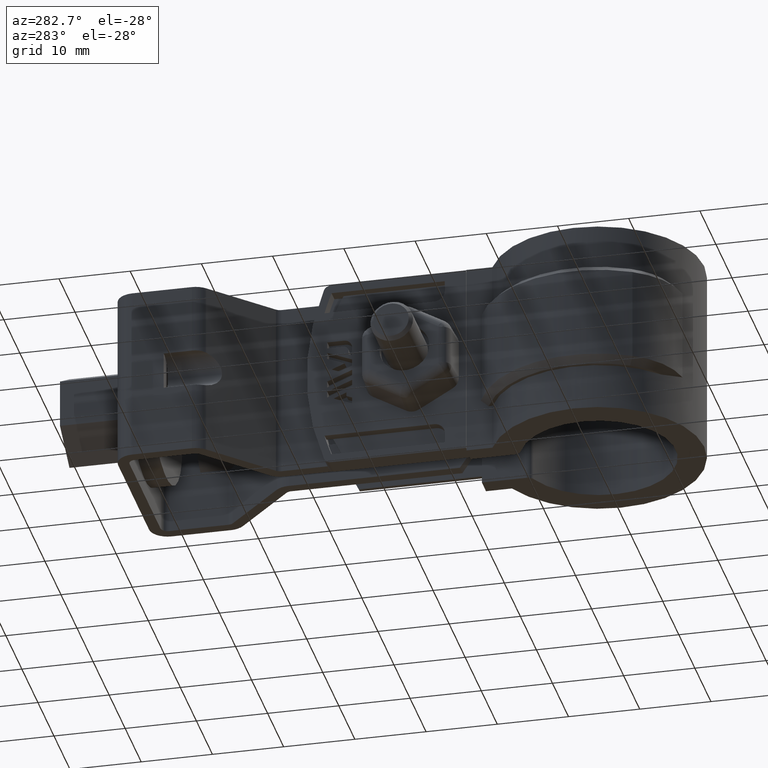
[diagram: clean part render]
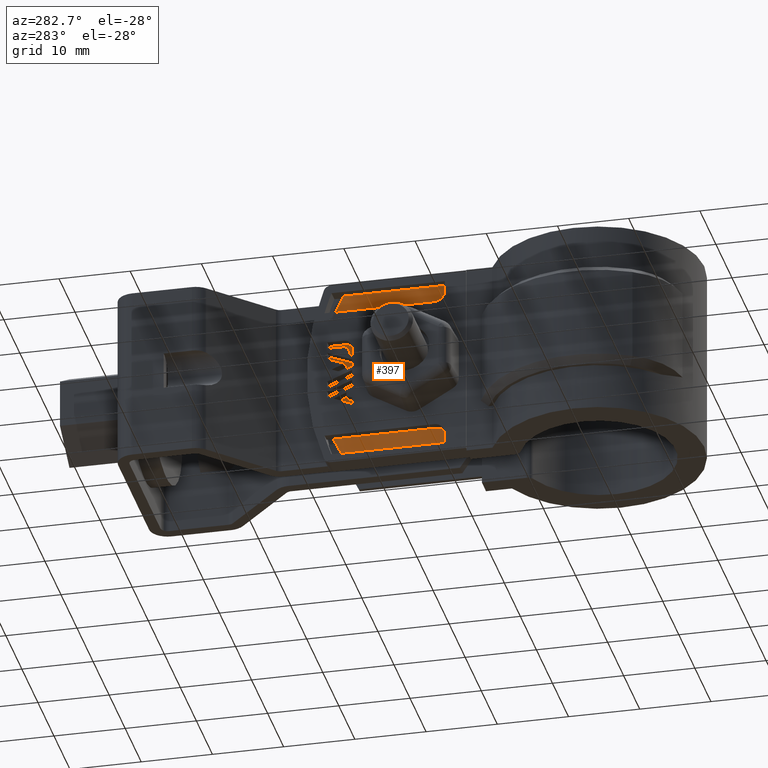
[diagram: same view with one face highlighted and labeled with its STEP entity id]
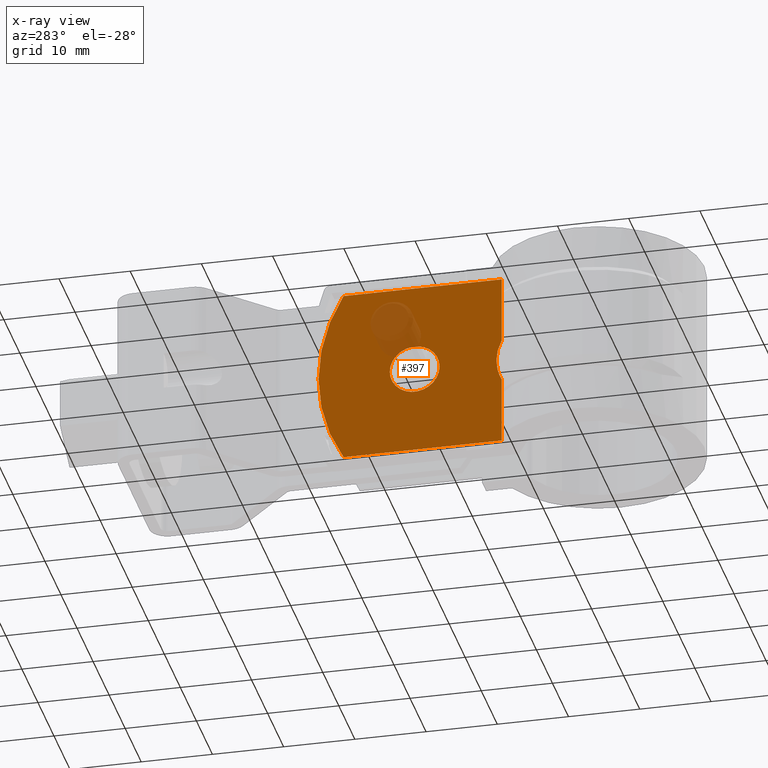
[diagram: x-ray of the same camera — body ghosted, the highlighted face saturated]
A machine part, auxiliary view. The second image highlights one B-rep face of the part: STEP entity #397.
The next image is the same camera in x-ray: the body ghosted, the highlighted face saturated — about 8% of this face is hidden behind the body in this view.
In plain terms, the highlighted planar face has unit normal (1, -0, 0).
Its self-contained STEP definition (entity closure, byte-faithful):
#397 = ADVANCED_FACE( '', ( #760, #761 ), #762, .F. );
#760 = FACE_BOUND( '', #1601, .T. );
#761 = FACE_OUTER_BOUND( '', #1602, .T. );
#762 = PLANE( '', #1603 );
#1601 = EDGE_LOOP( '', ( #3378 ) );
#1602 = EDGE_LOOP( '', ( #3379, #3380, #3381, #3382, #3383, #3384 ) );
#1603 = AXIS2_PLACEMENT_3D( '', #3385, #3386, #3387 );
#3378 = ORIENTED_EDGE( '', *, *, #6409, .F. );
#3379 = ORIENTED_EDGE( '', *, *, #6407, .F. );
#3380 = ORIENTED_EDGE( '', *, *, #6411, .F. );
#3381 = ORIENTED_EDGE( '', *, *, #6299, .F. );
#3382 = ORIENTED_EDGE( '', *, *, #6348, .F. );
#3383 = ORIENTED_EDGE( '', *, *, #6340, .T. );
#3384 = ORIENTED_EDGE( '', *, *, #6410, .F. );
#3385 = CARTESIAN_POINT( '', ( -5.10000000000000, 38.1782154210768, 0.000000000000000 ) );
#3386 = DIRECTION( '', ( 1.00000000000000, -6.12303176911189E-017, 0.000000000000000 ) );
#3387 = DIRECTION( '', ( -6.12303176911189E-017, -1.00000000000000, 0.000000000000000 ) );
#6299 = EDGE_CURVE( '', #7223, #7226, #7227, .T. );
#6340 = EDGE_CURVE( '', #7299, #7297, #7300, .T. );
#6348 = EDGE_CURVE( '', #7299, #7223, #7313, .T. );
#6407 = EDGE_CURVE( '', #7403, #7401, #7405, .T. );
#6409 = EDGE_CURVE( '', #7408, #7408, #7409, .F. );
#6410 = EDGE_CURVE( '', #7401, #7297, #7410, .T. );
#6411 = EDGE_CURVE( '', #7226, #7403, #7411, .T. );
#7223 = VERTEX_POINT( '', #8834 );
#7226 = VERTEX_POINT( '', #8838 );
#7227 = LINE( '', #8839, #8840 );
#7297 = VERTEX_POINT( '', #9165 );
#7299 = VERTEX_POINT( '', #9167 );
#7300 = LINE( '', #9168, #9169 );
#7313 = CIRCLE( '', #9185, 24.0000000000000 );
#7401 = VERTEX_POINT( '', #9590 );
#7403 = VERTEX_POINT( '', #9605 );
#7405 = B_SPLINE_CURVE_WITH_KNOTS( '', 3, ( #9620, #9621, #9622, #9623, #9624, #9625, #9626, #9627, #9628, #9629, #9630, #9631, #9632 ), .UNSPECIFIED., .F., .F., ( 4, 2, 2, 1, 2, 2, 4 ), ( 9.34177181294034E-018, 0.00156146706594367, 0.00234220059891550, 0.00312293413188732, 0.00390366766485915, 0.00468440119783098, 0.00624586826377463 ), .UNSPECIFIED. );
#7408 = VERTEX_POINT( '', #9635 );
#7409 = CIRCLE( '', #9636, 3.50000000000000 );
#7410 = LINE( '', #9637, #9638 );
#7411 = LINE( '', #9639, #9640 );
#8834 = CARTESIAN_POINT( '', ( -5.10000000000000, 34.6660166696247, 1.65195098321279E-031 ) );
#8838 = CARTESIAN_POINT( '', ( -5.10000000000000, 12.4560226396711, 0.000000000000000 ) );
#8839 = CARTESIAN_POINT( '', ( -5.10000000000000, 38.1782154210768, 0.000000000000000 ) );
#8840 = VECTOR( '', #12273, 1000.00000000000 );
#9165 = CARTESIAN_POINT( '', ( -5.10000000000000, 12.4560226396711, -25.0000000000000 ) );
#9167 = CARTESIAN_POINT( '', ( -5.10000000000000, 34.6660166696247, -25.0000000000000 ) );
#9168 = CARTESIAN_POINT( '', ( -5.10000000000000, 38.1782154210768, -25.0000000000000 ) );
#9169 = VECTOR( '', #12319, 1000.00000000000 );
#9185 = AXIS2_PLACEMENT_3D( '', #12335, #12336, #12337 );
#9590 = CARTESIAN_POINT( '', ( -5.10000000000000, 12.4560226396711, -15.5085769733922 ) );
#9605 = CARTESIAN_POINT( '', ( -5.10000000000000, 12.4560226396711, -9.49142302660777 ) );
#9620 = CARTESIAN_POINT( '', ( -5.10000000000000, 12.4560226396711, -9.49142302660776 ) );
#9621 = CARTESIAN_POINT( '', ( -5.10000000000000, 12.6983769073164, -9.95816151910542 ) );
#9622 = CARTESIAN_POINT( '', ( -5.10000000000000, 12.8820837839224, -10.4453319076128 ) );
#9623 = CARTESIAN_POINT( '', ( -5.10000000000000, 13.0708746798180, -11.2063166909350 ) );
#9624 = CARTESIAN_POINT( '', ( -5.09999999999998, 13.1190641562529, -11.4660298201274 ) );
#9625 = CARTESIAN_POINT( '', ( -5.09999999999998, 13.1828371040741, -11.9829992697544 ) );
#9626 = CARTESIAN_POINT( '', ( -5.09999999999984, 13.2149639764387, -12.5004644633223 ) );
#9627 = CARTESIAN_POINT( '', ( -5.09999999999999, 13.1827186519684, -13.0189380639705 ) );
#9628 = CARTESIAN_POINT( '', ( -5.09999999999999, 13.1184558356488, -13.5379132268934 ) );
#9629 = CARTESIAN_POINT( '', ( -5.10000000000000, 13.0700926469305, -13.7972842508664 ) );
#9630 = CARTESIAN_POINT( '', ( -5.10000000000000, 12.8816598140984, -14.5554725058611 ) );
#9631 = CARTESIAN_POINT( '', ( -5.09999999999999, 12.6983868123583, -15.0418194052482 ) );
#9632 = CARTESIAN_POINT( '', ( -5.09999999999999, 12.4560226396711, -15.5085769733922 ) );
#9635 = CARTESIAN_POINT( '', ( -5.10000000000000, 28.1782154210768, -12.5000000000000 ) );
#9636 = AXIS2_PLACEMENT_3D( '', #12394, #12395, #12396 );
#9637 = CARTESIAN_POINT( '', ( -5.10000000000000, 12.4560226396711, 0.000000000000000 ) );
#9638 = VECTOR( '', #12397, 1000.00000000000 );
#9639 = CARTESIAN_POINT( '', ( -5.10000000000000, 12.4560226396711, 0.000000000000000 ) );
#9640 = VECTOR( '', #12398, 1000.00000000000 );
#12273 = DIRECTION( '', ( -6.12303176911189E-017, -1.00000000000000, 0.000000000000000 ) );
#12319 = DIRECTION( '', ( -6.12303176911189E-017, -1.00000000000000, 0.000000000000000 ) );
#12335 = CARTESIAN_POINT( '', ( -5.10000000000000, 14.1782154210768, -12.5000000000000 ) );
#12336 = DIRECTION( '', ( 1.00000000000000, -6.12303176911189E-017, 0.000000000000000 ) );
#12337 = DIRECTION( '', ( 6.12303176911189E-017, 1.00000000000000, 0.000000000000000 ) );
#12394 = CARTESIAN_POINT( '', ( -5.10000000000000, 24.6782154210768, -12.5000000000000 ) );
#12395 = DIRECTION( '', ( 1.00000000000000, -6.12303176911189E-017, 0.000000000000000 ) );
#12396 = DIRECTION( '', ( 6.12303176911189E-017, 1.00000000000000, 0.000000000000000 ) );
#12397 = DIRECTION( '', ( 0.000000000000000, 0.000000000000000, -1.00000000000000 ) );
#12398 = DIRECTION( '', ( 0.000000000000000, 0.000000000000000, -1.00000000000000 ) );